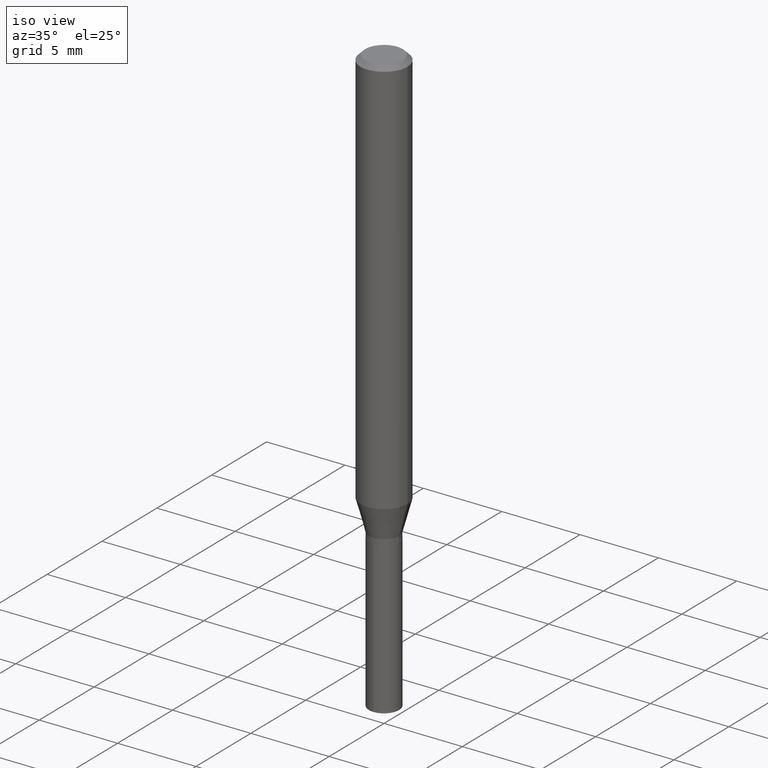
[diagram: clean part render]
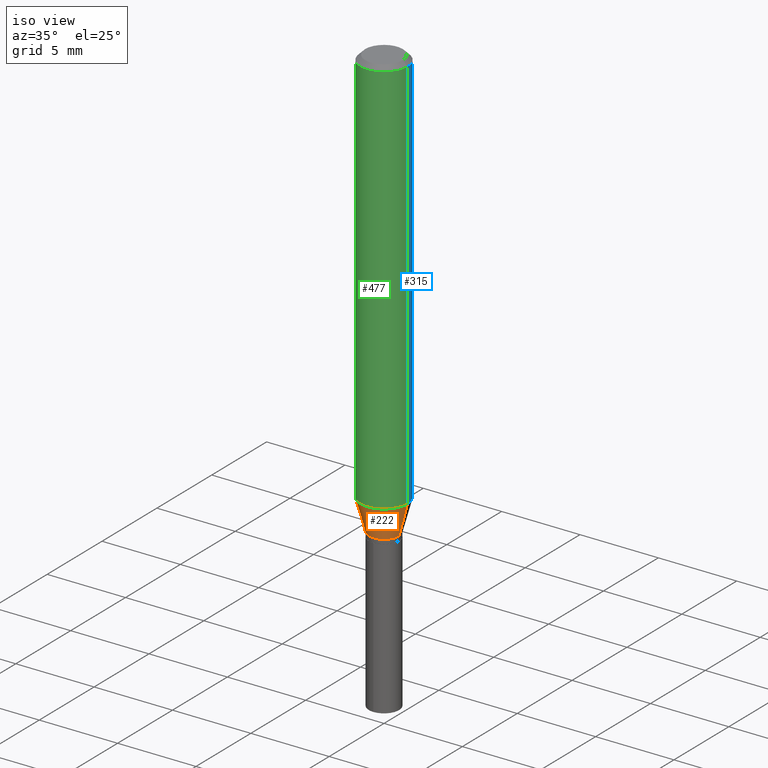
[diagram: same view with three faces highlighted in distinct colors, each labeled with its STEP entity id]
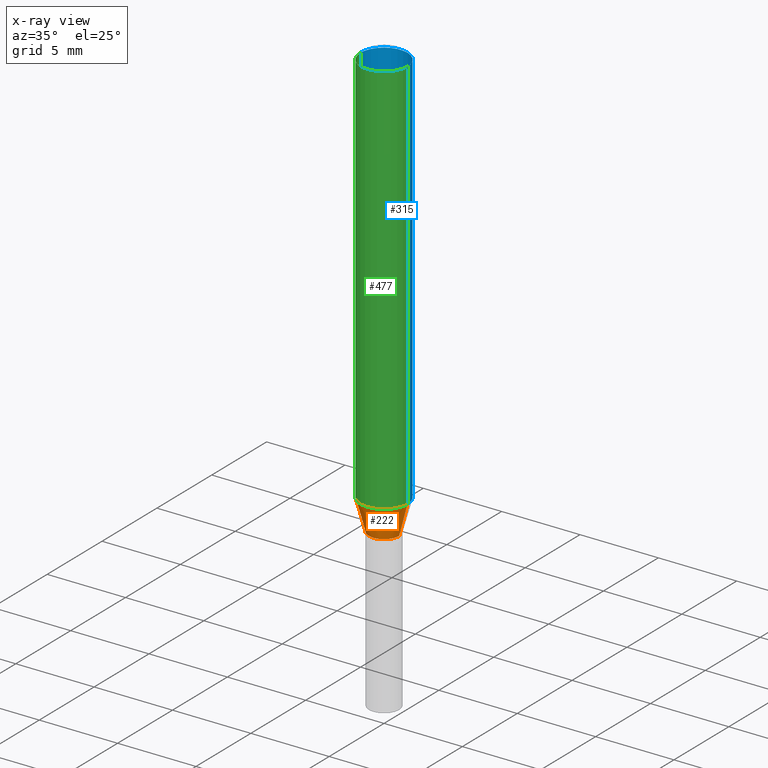
[diagram: x-ray of the same camera — body ghosted, the three highlighted faces saturated]
A machine part, iso view with three faces highlighted in distinct colors.
The next image is the same camera in x-ray (body ghosted, the three faces saturated) — at least one of them is partly hidden behind the body in this view.
Their STEP definitions:

[orange] entity #222 — the highlighted conical surface has half-angle 15 deg.
#19 = CARTESIAN_POINT ( 'NONE',  ( 0.05905000000000011628, -3.919677764175807032E-15, -1.004540330500674816 ) ) ;
#30 = CARTESIAN_POINT ( 'NONE',  ( -0.05905000000000011628, -3.087758332592092225E-15, -1.004540330500674816 ) ) ;
#33 = CIRCLE ( 'NONE', #72, 0.03799999999999999906 ) ;
#44 = LINE ( 'NONE', #203, #483 ) ;
#47 = ORIENTED_EDGE ( 'NONE', *, *, #224, .F. ) ;
#60 = CARTESIAN_POINT ( 'NONE',  ( 2.648687263979121750E-29, -3.781623438101010914E-15, -1.083099999999999952 ) ) ;
#72 = AXIS2_PLACEMENT_3D ( 'NONE', #60, #218, #369 ) ;
#75 = DIRECTION ( 'NONE',  ( 1.000000000000000000, -6.982962677686269077E-15, 0.000000000000000000 ) ) ;
#92 = VERTEX_POINT ( 'NONE', #30 ) ;
#117 = DIRECTION ( 'NONE',  ( -2.445468806185136597E-29, 3.491481338843145583E-15, 1.000000000000000000 ) ) ;
#120 = CONICAL_SURFACE ( 'NONE', #240, 0.03799999999999999906, 0.2617993877991499629 ) ;
#155 = ORIENTED_EDGE ( 'NONE', *, *, #384, .T. ) ;
#158 = DIRECTION ( 'NONE',  ( 0.2588190451025212391, 1.565188264969622362E-15, 0.9659258262890679791 ) ) ;
#174 = EDGE_CURVE ( 'NONE', #363, #194, #33, .T. ) ;
#194 = VERTEX_POINT ( 'NONE', #445 ) ;
#196 = CARTESIAN_POINT ( 'NONE',  ( -0.03799999999999999906, -3.530645771808868176E-15, -1.083099999999999952 ) ) ;
#198 = EDGE_LOOP ( 'NONE', ( #403, #208, #155, #47 ) ) ;
#203 = CARTESIAN_POINT ( 'NONE',  ( 0.03799999999999999906, -4.046976019853088923E-15, -1.083099999999999952 ) ) ;
#208 = ORIENTED_EDGE ( 'NONE', *, *, #174, .T. ) ;
#218 = DIRECTION ( 'NONE',  ( -2.445468806185136597E-29, 3.491481338843145583E-15, 1.000000000000000000 ) ) ;
#222 = ADVANCED_FACE ( 'NONE', ( #233 ), #120, .T. ) ;
#224 = EDGE_CURVE ( 'NONE', #92, #468, #444, .T. ) ;
#231 = LINE ( 'NONE', #461, #437 ) ;
#233 = FACE_OUTER_BOUND ( 'NONE', #198, .T. ) ;
#240 = AXIS2_PLACEMENT_3D ( 'NONE', #347, #279, #75 ) ;
#266 = AXIS2_PLACEMENT_3D ( 'NONE', #419, #117, #317 ) ;
#277 = EDGE_CURVE ( 'NONE', #363, #92, #231, .T. ) ;
#279 = DIRECTION ( 'NONE',  ( -2.445468806185136597E-29, 3.491481338843145583E-15, 1.000000000000000000 ) ) ;
#317 = DIRECTION ( 'NONE',  ( 1.000000000000000000, -6.982962677686266711E-15, 0.000000000000000000 ) ) ;
#347 = CARTESIAN_POINT ( 'NONE',  ( 2.648687263979121750E-29, -3.781623438101010914E-15, -1.083099999999999952 ) ) ;
#363 = VERTEX_POINT ( 'NONE', #196 ) ;
#369 = DIRECTION ( 'NONE',  ( 1.000000000000000000, -6.982962677686269077E-15, 0.000000000000000000 ) ) ;
#384 = EDGE_CURVE ( 'NONE', #194, #468, #44, .T. ) ;
#403 = ORIENTED_EDGE ( 'NONE', *, *, #277, .F. ) ;
#419 = CARTESIAN_POINT ( 'NONE',  ( 2.456572042794307838E-29, -3.507333818058432112E-15, -1.004540330500674816 ) ) ;
#437 = VECTOR ( 'NONE', #462, 39.37007874015748854 ) ;
#444 = CIRCLE ( 'NONE', #266, 0.05905000000000011628 ) ;
#445 = CARTESIAN_POINT ( 'NONE',  ( 0.03799999999999999906, -4.046976019853088923E-15, -1.083099999999999952 ) ) ;
#461 = CARTESIAN_POINT ( 'NONE',  ( -0.03799999999999999906, -3.511617198512172998E-15, -1.083099999999999952 ) ) ;
#462 = DIRECTION ( 'NONE',  ( -0.2588190451025212391, 5.211531920934549464E-15, 0.9659258262890679791 ) ) ;
#468 = VERTEX_POINT ( 'NONE', #19 ) ;
#483 = VECTOR ( 'NONE', #158, 39.37007874015748854 ) ;

[blue] entity #315 — the highlighted cylindrical surface (edge-blend (fillet) strip) has radius 1.4999 mm, axis along (-0, 0, 1).
#6 = VECTOR ( 'NONE', #107, 39.37007874015748143 ) ;
#19 = CARTESIAN_POINT ( 'NONE',  ( 0.05905000000000011628, -3.919677764175807032E-15, -1.004540330500674816 ) ) ;
#30 = CARTESIAN_POINT ( 'NONE',  ( -0.05905000000000011628, -3.087758332592092225E-15, -1.004540330500674816 ) ) ;
#35 = DIRECTION ( 'NONE',  ( -2.445468806185136597E-29, 3.491481338843145583E-15, 1.000000000000000000 ) ) ;
#42 = FACE_OUTER_BOUND ( 'NONE', #245, .T. ) ;
#66 = CARTESIAN_POINT ( 'NONE',  ( -0.05905000000000006077, 4.195754854663395916E-16, -2.904631170795524694E-30 ) ) ;
#69 = EDGE_CURVE ( 'NONE', #92, #425, #449, .T. ) ;
#71 = CYLINDRICAL_SURFACE ( 'NONE', #331, 0.05905000000000006077 ) ;
#76 = ORIENTED_EDGE ( 'NONE', *, *, #485, .F. ) ;
#81 = CIRCLE ( 'NONE', #292, 0.05905000000000011628 ) ;
#86 = LINE ( 'NONE', #93, #453 ) ;
#92 = VERTEX_POINT ( 'NONE', #30 ) ;
#93 = CARTESIAN_POINT ( 'NONE',  ( 0.05905000000000006077, -4.123439461173744764E-16, 2.879382386107503023E-30 ) ) ;
#107 = DIRECTION ( 'NONE',  ( -2.445468806185136877E-29, 3.491481338843145188E-15, 1.000000000000000000 ) ) ;
#115 = DIRECTION ( 'NONE',  ( 1.000000000000000000, -6.982962677686266711E-15, 0.000000000000000000 ) ) ;
#126 = DIRECTION ( 'NONE',  ( -2.445468806185136597E-29, 3.491481338843145583E-15, 1.000000000000000000 ) ) ;
#132 = ORIENTED_EDGE ( 'NONE', *, *, #404, .F. ) ;
#166 = VERTEX_POINT ( 'NONE', #488 ) ;
#197 = AXIS2_PLACEMENT_3D ( 'NONE', #283, #126, #328 ) ;
#245 = EDGE_LOOP ( 'NONE', ( #254, #432, #132, #76 ) ) ;
#247 = DIRECTION ( 'NONE',  ( -2.445468806185136877E-29, 3.491481338843145188E-15, 1.000000000000000000 ) ) ;
#254 = ORIENTED_EDGE ( 'NONE', *, *, #304, .T. ) ;
#271 = DIRECTION ( 'NONE',  ( -2.445468806185136597E-29, 3.491481338843145583E-15, 1.000000000000000000 ) ) ;
#283 = CARTESIAN_POINT ( 'NONE',  ( 2.888098660104663766E-31, -4.123439461173779647E-17, -0.01181000000000007044 ) ) ;
#292 = AXIS2_PLACEMENT_3D ( 'NONE', #390, #271, #115 ) ;
#304 = EDGE_CURVE ( 'NONE', #468, #92, #81, .T. ) ;
#315 = ADVANCED_FACE ( 'NONE', ( #42 ), #71, .T. ) ;
#328 = DIRECTION ( 'NONE',  ( 1.000000000000000000, -6.982962677686266711E-15, 0.000000000000000000 ) ) ;
#331 = AXIS2_PLACEMENT_3D ( 'NONE', #385, #35, #354 ) ;
#354 = DIRECTION ( 'NONE',  ( 1.000000000000000000, -6.982962677686266711E-15, 4.876176775795935793E-29 ) ) ;
#383 = CIRCLE ( 'NONE', #197, 0.05904999999999999832 ) ;
#385 = CARTESIAN_POINT ( 'NONE',  ( 0.000000000000000000, 0.000000000000000000, 0.000000000000000000 ) ) ;
#390 = CARTESIAN_POINT ( 'NONE',  ( 2.456572042794307838E-29, -3.507333818058432112E-15, -1.004540330500674816 ) ) ;
#397 = CARTESIAN_POINT ( 'NONE',  ( -0.05904999999999999832, -1.354708620868744441E-15, -0.01181000000000007044 ) ) ;
#404 = EDGE_CURVE ( 'NONE', #166, #425, #383, .T. ) ;
#425 = VERTEX_POINT ( 'NONE', #397 ) ;
#432 = ORIENTED_EDGE ( 'NONE', *, *, #69, .T. ) ;
#449 = LINE ( 'NONE', #66, #6 ) ;
#453 = VECTOR ( 'NONE', #247, 39.37007874015748143 ) ;
#468 = VERTEX_POINT ( 'NONE', #19 ) ;
#485 = EDGE_CURVE ( 'NONE', #468, #166, #86, .T. ) ;
#488 = CARTESIAN_POINT ( 'NONE',  ( 0.05904999999999999832, -4.535783407291118600E-16, -0.01181000000000007044 ) ) ;

[green] entity #477 — the highlighted cylindrical surface (edge-blend (fillet) strip) has radius 1.4999 mm, axis along (-0, 0, 1).
#6 = VECTOR ( 'NONE', #107, 39.37007874015748143 ) ;
#19 = CARTESIAN_POINT ( 'NONE',  ( 0.05905000000000011628, -3.919677764175807032E-15, -1.004540330500674816 ) ) ;
#24 = CARTESIAN_POINT ( 'NONE',  ( 2.888098660104663766E-31, -4.123439461173779647E-17, -0.01181000000000007044 ) ) ;
#30 = CARTESIAN_POINT ( 'NONE',  ( -0.05905000000000011628, -3.087758332592092225E-15, -1.004540330500674816 ) ) ;
#66 = CARTESIAN_POINT ( 'NONE',  ( -0.05905000000000006077, 4.195754854663395916E-16, -2.904631170795524694E-30 ) ) ;
#69 = EDGE_CURVE ( 'NONE', #92, #425, #449, .T. ) ;
#86 = LINE ( 'NONE', #93, #453 ) ;
#92 = VERTEX_POINT ( 'NONE', #30 ) ;
#93 = CARTESIAN_POINT ( 'NONE',  ( 0.05905000000000006077, -4.123439461173744764E-16, 2.879382386107503023E-30 ) ) ;
#107 = DIRECTION ( 'NONE',  ( -2.445468806185136877E-29, 3.491481338843145188E-15, 1.000000000000000000 ) ) ;
#117 = DIRECTION ( 'NONE',  ( -2.445468806185136597E-29, 3.491481338843145583E-15, 1.000000000000000000 ) ) ;
#123 = CARTESIAN_POINT ( 'NONE',  ( 0.000000000000000000, 0.000000000000000000, 0.000000000000000000 ) ) ;
#142 = DIRECTION ( 'NONE',  ( 1.000000000000000000, -6.982962677686266711E-15, 0.000000000000000000 ) ) ;
#161 = ORIENTED_EDGE ( 'NONE', *, *, #224, .T. ) ;
#166 = VERTEX_POINT ( 'NONE', #488 ) ;
#182 = EDGE_CURVE ( 'NONE', #425, #166, #207, .T. ) ;
#207 = CIRCLE ( 'NONE', #482, 0.05904999999999999832 ) ;
#210 = DIRECTION ( 'NONE',  ( 1.000000000000000000, -6.982962677686266711E-15, 4.876176775795935793E-29 ) ) ;
#224 = EDGE_CURVE ( 'NONE', #92, #468, #444, .T. ) ;
#247 = DIRECTION ( 'NONE',  ( -2.445468806185136877E-29, 3.491481338843145188E-15, 1.000000000000000000 ) ) ;
#251 = CYLINDRICAL_SURFACE ( 'NONE', #466, 0.05905000000000006077 ) ;
#266 = AXIS2_PLACEMENT_3D ( 'NONE', #419, #117, #317 ) ;
#288 = DIRECTION ( 'NONE',  ( -2.445468806185136597E-29, 3.491481338843145583E-15, 1.000000000000000000 ) ) ;
#317 = DIRECTION ( 'NONE',  ( 1.000000000000000000, -6.982962677686266711E-15, 0.000000000000000000 ) ) ;
#340 = DIRECTION ( 'NONE',  ( -2.445468806185136597E-29, 3.491481338843145583E-15, 1.000000000000000000 ) ) ;
#366 = ORIENTED_EDGE ( 'NONE', *, *, #485, .T. ) ;
#397 = CARTESIAN_POINT ( 'NONE',  ( -0.05904999999999999832, -1.354708620868744441E-15, -0.01181000000000007044 ) ) ;
#401 = ORIENTED_EDGE ( 'NONE', *, *, #182, .F. ) ;
#419 = CARTESIAN_POINT ( 'NONE',  ( 2.456572042794307838E-29, -3.507333818058432112E-15, -1.004540330500674816 ) ) ;
#425 = VERTEX_POINT ( 'NONE', #397 ) ;
#441 = EDGE_LOOP ( 'NONE', ( #463, #161, #366, #401 ) ) ;
#444 = CIRCLE ( 'NONE', #266, 0.05905000000000011628 ) ;
#449 = LINE ( 'NONE', #66, #6 ) ;
#453 = VECTOR ( 'NONE', #247, 39.37007874015748143 ) ;
#463 = ORIENTED_EDGE ( 'NONE', *, *, #69, .F. ) ;
#466 = AXIS2_PLACEMENT_3D ( 'NONE', #123, #288, #210 ) ;
#468 = VERTEX_POINT ( 'NONE', #19 ) ;
#469 = FACE_OUTER_BOUND ( 'NONE', #441, .T. ) ;
#477 = ADVANCED_FACE ( 'NONE', ( #469 ), #251, .T. ) ;
#482 = AXIS2_PLACEMENT_3D ( 'NONE', #24, #340, #142 ) ;
#485 = EDGE_CURVE ( 'NONE', #468, #166, #86, .T. ) ;
#488 = CARTESIAN_POINT ( 'NONE',  ( 0.05904999999999999832, -4.535783407291118600E-16, -0.01181000000000007044 ) ) ;